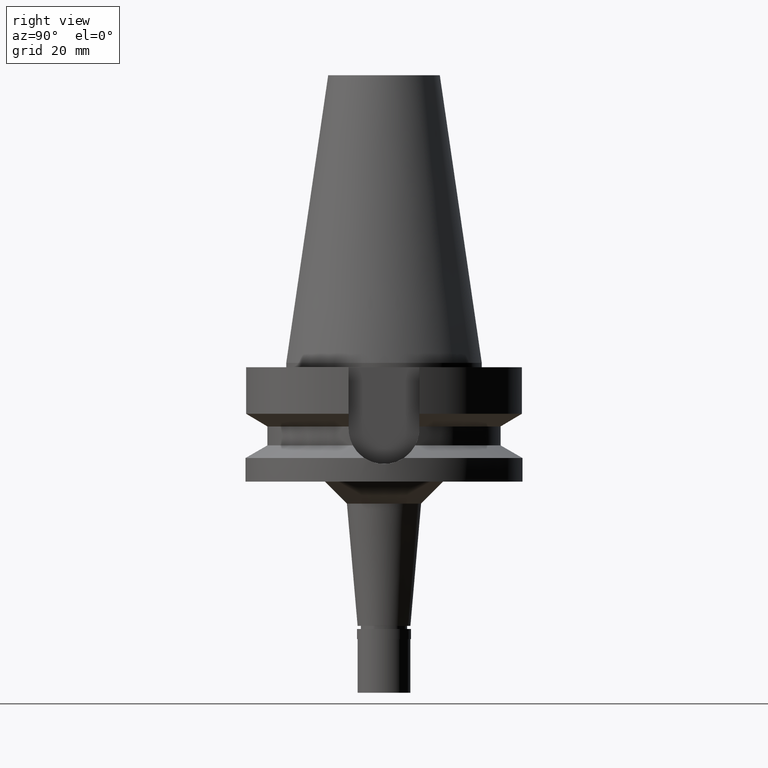
[diagram: clean part render]
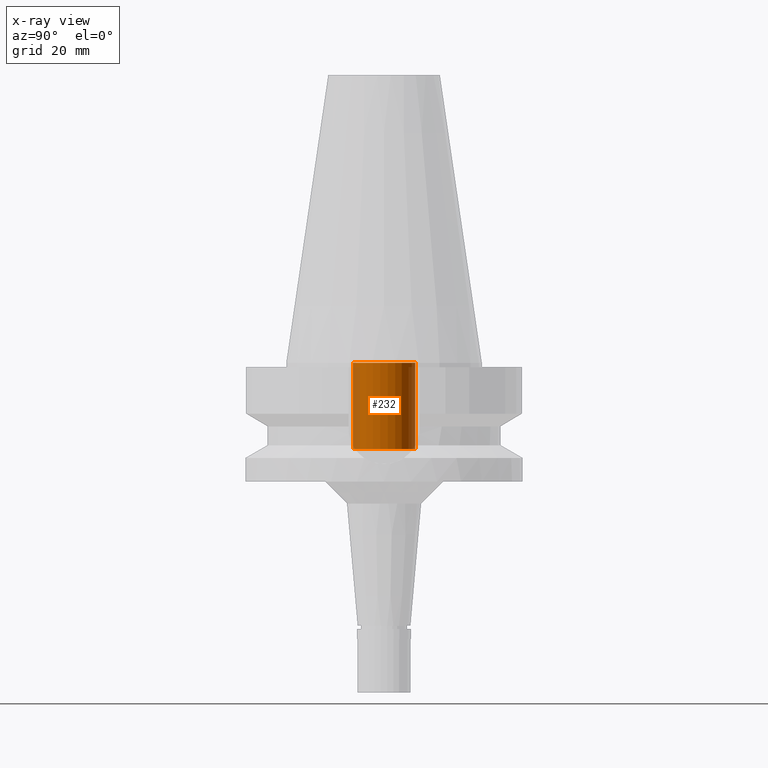
[diagram: x-ray — body ghosted, one internal face saturated and labeled with its STEP entity id]
A machine part, right view, then the same camera in x-ray: the body is ghosted and one INTERNAL B-rep face — a face not visible from any outside direction — is saturated and labeled: STEP entity #232.
In plain terms, the highlighted cylindrical surface (edge-blend (fillet) strip) has radius 7.1 mm, axis along (0, 0, -1).
Its self-contained STEP definition (entity closure, byte-faithful):
#25 = FACE_OUTER_BOUND ( 'NONE', #1254, .T. ) ;
#151 = AXIS2_PLACEMENT_3D ( 'NONE', #1931, #2373, #1226 ) ;
#221 = CARTESIAN_POINT ( 'NONE',  ( 0.0000000000000000000, 7.100000000000000533, 1.421085471519999938E-13 ) ) ;
#232 = ADVANCED_FACE ( 'NONE', ( #25 ), #1210, .F. ) ;
#294 = CARTESIAN_POINT ( 'NONE',  ( 0.0000000000000000000, 7.100000000000000533, -19.59999999999999787 ) ) ;
#311 = AXIS2_PLACEMENT_3D ( 'NONE', #2101, #1003, #2372 ) ;
#371 = CARTESIAN_POINT ( 'NONE',  ( 0.0000000000000000000, 7.100000000000000533, -19.59999999999999787 ) ) ;
#423 = LINE ( 'NONE', #1338, #2455 ) ;
#453 = VERTEX_POINT ( 'NONE', #895 ) ;
#498 = EDGE_CURVE ( 'NONE', #2442, #1761, #2488, .T. ) ;
#677 = EDGE_CURVE ( 'NONE', #2543, #1761, #1426, .T. ) ;
#784 = CIRCLE ( 'NONE', #151, 7.100000000000000533 ) ;
#895 = CARTESIAN_POINT ( 'NONE',  ( 0.0000000000000000000, -7.100000000000000533, -19.59999999999999787 ) ) ;
#1003 = DIRECTION ( 'NONE',  ( 0.0000000000000000000, 0.0000000000000000000, 1.000000000000000000 ) ) ;
#1039 = CARTESIAN_POINT ( 'NONE',  ( 0.0000000000000000000, -7.100000000000000533, 1.421085471519999938E-13 ) ) ;
#1077 = DIRECTION ( 'NONE',  ( 0.0000000000000000000, 0.0000000000000000000, 1.000000000000000000 ) ) ;
#1182 = CARTESIAN_POINT ( 'NONE',  ( 0.0000000000000000000, 2.109086717491999768E-14, 72.22000000000001307 ) ) ;
#1210 = CYLINDRICAL_SURFACE ( 'NONE', #2529, 7.100000000000000533 ) ;
#1226 = DIRECTION ( 'NONE',  ( 0.0000000000000000000, 1.000000000000000000, 0.0000000000000000000 ) ) ;
#1254 = EDGE_LOOP ( 'NONE', ( #2594, #2022, #2169, #2053 ) ) ;
#1271 = VECTOR ( 'NONE', #1077, 1000.000000000000000 ) ;
#1338 = CARTESIAN_POINT ( 'NONE',  ( 0.0000000000000000000, -7.100000000000000533, -19.59999999999999787 ) ) ;
#1426 = CIRCLE ( 'NONE', #311, 7.100000000000000533 ) ;
#1650 = EDGE_CURVE ( 'NONE', #453, #2543, #423, .T. ) ;
#1761 = VERTEX_POINT ( 'NONE', #221 ) ;
#1860 = DIRECTION ( 'NONE',  ( 0.0000000000000000000, 0.0000000000000000000, -1.000000000000000000 ) ) ;
#1931 = CARTESIAN_POINT ( 'NONE',  ( 0.0000000000000000000, 2.109086717491999768E-14, -19.59999999999999787 ) ) ;
#2022 = ORIENTED_EDGE ( 'NONE', *, *, #1650, .T. ) ;
#2053 = ORIENTED_EDGE ( 'NONE', *, *, #498, .F. ) ;
#2101 = CARTESIAN_POINT ( 'NONE',  ( 0.0000000000000000000, 2.109086717491999768E-14, 1.705302565823999875E-13 ) ) ;
#2169 = ORIENTED_EDGE ( 'NONE', *, *, #677, .T. ) ;
#2343 = DIRECTION ( 'NONE',  ( 0.0000000000000000000, -1.000000000000000000, 0.0000000000000000000 ) ) ;
#2372 = DIRECTION ( 'NONE',  ( 0.0000000000000000000, -1.000000000000000000, 0.0000000000000000000 ) ) ;
#2373 = DIRECTION ( 'NONE',  ( 0.0000000000000000000, 0.0000000000000000000, -1.000000000000000000 ) ) ;
#2442 = VERTEX_POINT ( 'NONE', #294 ) ;
#2455 = VECTOR ( 'NONE', #2512, 1000.000000000000000 ) ;
#2488 = LINE ( 'NONE', #371, #1271 ) ;
#2512 = DIRECTION ( 'NONE',  ( 0.0000000000000000000, 0.0000000000000000000, 1.000000000000000000 ) ) ;
#2529 = AXIS2_PLACEMENT_3D ( 'NONE', #1182, #1860, #2343 ) ;
#2543 = VERTEX_POINT ( 'NONE', #1039 ) ;
#2594 = ORIENTED_EDGE ( 'NONE', *, *, #2635, .T. ) ;
#2635 = EDGE_CURVE ( 'NONE', #2442, #453, #784, .T. ) ;